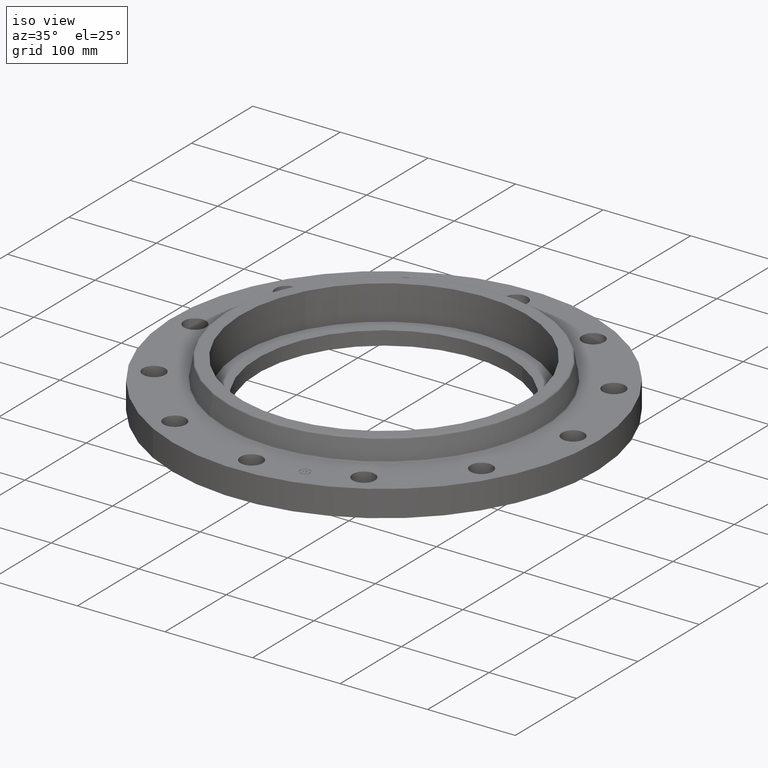
[diagram: clean part render]
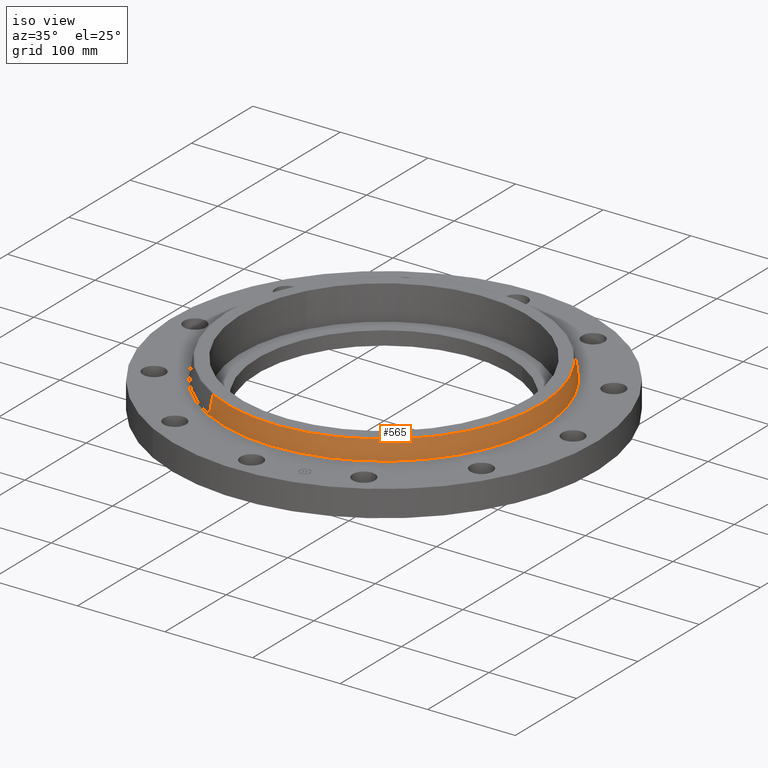
[diagram: same view with one face highlighted and labeled with its STEP entity id]
A machine part, iso view. The second image highlights one B-rep face of the part: STEP entity #565.
In plain terms, the highlighted conical surface has half-angle 10 deg.
Its self-contained STEP definition (entity closure, byte-faithful):
#501=AXIS2_PLACEMENT_3D('Circle Axis2P3D',#499,#500,$) ;
#538=AXIS2_PLACEMENT_3D('Cone Axis2P3D',#535,#536,#537) ;
#549=AXIS2_PLACEMENT_3D('Circle Axis2P3D',#547,#548,$) ;
#496=CARTESIAN_POINT('Vertex',(3.44287825089,6.30214636561,1.23958110934)) ;
#499=CARTESIAN_POINT('Axis2P3D Location',(0.,0.,1.23958110934)) ;
#503=CARTESIAN_POINT('Vertex',(-3.44287825089,-6.30214636561,1.23958110934)) ;
#535=CARTESIAN_POINT('Axis2P3D Location',(0.,0.,2.07041889067)) ;
#540=CARTESIAN_POINT('Line Origine',(3.40776054175,6.23786383021,1.65500000001)) ;
#544=CARTESIAN_POINT('Vertex',(3.37264283261,6.17358129481,2.07041889067)) ;
#547=CARTESIAN_POINT('Axis2P3D Location',(0.,0.,2.07041889067)) ;
#551=CARTESIAN_POINT('Vertex',(-3.37264283261,-6.17358129481,2.07041889067)) ;
#554=CARTESIAN_POINT('Line Origine',(-3.40776054175,-6.23786383021,1.65500000001)) ;
#500=DIRECTION('Axis2P3D Direction',(0.,0.,-0.0393700787402)) ;
#536=DIRECTION('Axis2P3D Direction',(0.,0.,-0.0393700787402)) ;
#537=DIRECTION('Axis2P3D XDirection',(-0.0188750212049,-0.0345504945626,0.)) ;
#541=DIRECTION('Vector Direction',(0.00327761303565,0.00599963041829,-0.03877195878)) ;
#548=DIRECTION('Axis2P3D Direction',(0.,0.,-0.0393700787402)) ;
#555=DIRECTION('Vector Direction',(-0.00327761303565,-0.00599963041829,-0.03877195878)) ;
#542=VECTOR('Line Direction',#541,0.0393700787402) ;
#556=VECTOR('Line Direction',#555,0.0393700787402) ;
#560=ORIENTED_EDGE('',*,*,#505,.F.) ;
#561=ORIENTED_EDGE('',*,*,#546,.T.) ;
#562=ORIENTED_EDGE('',*,*,#553,.T.) ;
#563=ORIENTED_EDGE('',*,*,#558,.F.) ;
#565=ADVANCED_FACE('PartBody',(#564),#539,.T.) ;
#502=CIRCLE('generated circle',#501,7.18125751272) ;
#550=CIRCLE('generated circle',#549,7.03475839528) ;
#539=CONICAL_SURFACE('Cone',#538,7.03475839528,0.174532925199) ;
#505=EDGE_CURVE('',#497,#504,#502,.T.) ;
#546=EDGE_CURVE('',#497,#545,#543,.F.) ;
#553=EDGE_CURVE('',#545,#552,#550,.T.) ;
#558=EDGE_CURVE('',#504,#552,#557,.F.) ;
#559=EDGE_LOOP('',(#560,#561,#562,#563)) ;
#564=FACE_OUTER_BOUND('',#559,.T.) ;
#543=LINE('Line',#540,#542) ;
#557=LINE('Line',#554,#556) ;
#497=VERTEX_POINT('',#496) ;
#504=VERTEX_POINT('',#503) ;
#545=VERTEX_POINT('',#544) ;
#552=VERTEX_POINT('',#551) ;